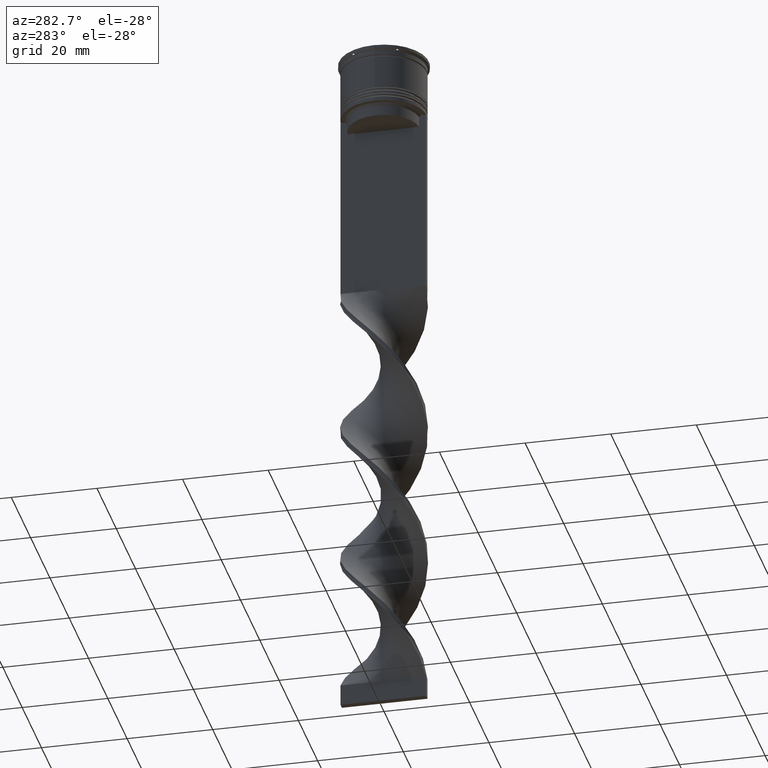
[diagram: clean part render]
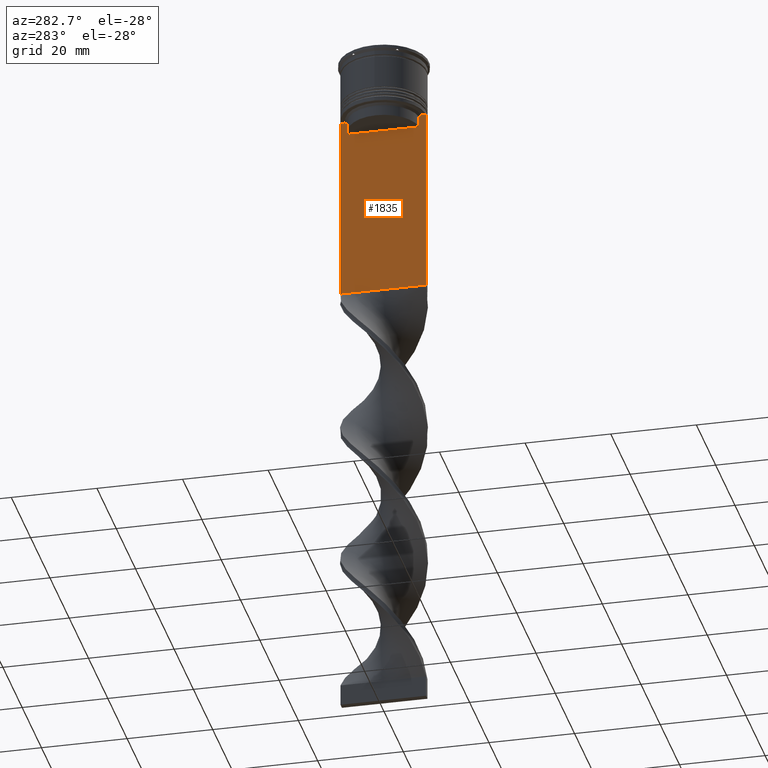
[diagram: same view with one face highlighted and labeled with its STEP entity id]
A machine part, auxiliary view. The second image highlights one B-rep face of the part: STEP entity #1835.
In plain terms, the highlighted planar face has unit normal (-1, 0, 0).
Its self-contained STEP definition (entity closure, byte-faithful):
#48 = VECTOR ( 'NONE', #1166, 1000.000000000000000 ) ;
#164 = VERTEX_POINT ( 'NONE', #1849 ) ;
#174 = VECTOR ( 'NONE', #1557, 1000.000000000000000 ) ;
#218 = CARTESIAN_POINT ( 'NONE',  ( -0.7499999999999997780, 9.999999999999998224, -14.00000000000000178 ) ) ;
#337 = DIRECTION ( 'NONE',  ( -1.000000000000000000, 0.000000000000000000, 0.000000000000000000 ) ) ;
#352 = B_SPLINE_CURVE_WITH_KNOTS ( 'NONE', 3,
 ( #2142, #1228, #3072, #3032 ),
 .UNSPECIFIED., .F., .F.,
 ( 4, 4 ),
 ( 0.01512225952876174867, 0.01583070519299695222 ),
 .UNSPECIFIED. ) ;
#382 = VECTOR ( 'NONE', #1616, 1000.000000000000000 ) ;
#396 = LINE ( 'NONE', #1749, #3365 ) ;
#413 = VERTEX_POINT ( 'NONE', #218 ) ;
#414 = CARTESIAN_POINT ( 'NONE',  ( -0.7499999999999997780, 8.366450860430608927, -14.50000000000000000 ) ) ;
#415 = LINE ( 'NONE', #2655, #759 ) ;
#502 = CARTESIAN_POINT ( 'NONE',  ( -0.7499999999999997780, 8.868342573446296839, -14.00000000000000178 ) ) ;
#536 = EDGE_CURVE ( 'NONE', #2139, #1716, #3877, .T. ) ;
#542 = DIRECTION ( 'NONE',  ( 0.000000000000000000, 1.000000000000000000, 0.000000000000000000 ) ) ;
#566 = LINE ( 'NONE', #819, #2342 ) ;
#611 = LINE ( 'NONE', #1262, #3353 ) ;
#683 = CARTESIAN_POINT ( 'NONE',  ( -0.7499999999999997780, -8.533766903463440912, -14.33335220807192201 ) ) ;
#759 = VECTOR ( 'NONE', #3122, 1000.000000000000000 ) ;
#786 = CARTESIAN_POINT ( 'NONE',  ( -0.7499999999999997780, -8.868342573446296839, -14.00000000000000178 ) ) ;
#815 = CARTESIAN_POINT ( 'NONE',  ( -0.7499999999999997780, -8.366450860430608927, -17.00000000000000000 ) ) ;
#819 = CARTESIAN_POINT ( 'NONE',  ( -0.7499999999999997780, -10.00000000000000533, -58.00000000000000000 ) ) ;
#831 = LINE ( 'NONE', #3139, #382 ) ;
#841 = CARTESIAN_POINT ( 'NONE',  ( -0.7499999999999997780, 8.400000000000003908, -17.00000000000000000 ) ) ;
#870 = CARTESIAN_POINT ( 'NONE',  ( -0.7499999999999997780, -10.00000000000000533, 6.056171120131581098 ) ) ;
#882 = LINE ( 'NONE', #3914, #174 ) ;
#906 = VERTEX_POINT ( 'NONE', #2338 ) ;
#934 = ORIENTED_EDGE ( 'NONE', *, *, #1369, .F. ) ;
#985 = CARTESIAN_POINT ( 'NONE',  ( -0.7499999999999997780, -8.366450860430608927, -14.50000000000000000 ) ) ;
#1065 = VECTOR ( 'NONE', #1460, 1000.000000000000000 ) ;
#1070 = EDGE_CURVE ( 'NONE', #2064, #1961, #3288, .T. ) ;
#1159 = DIRECTION ( 'NONE',  ( 0.000000000000000000, -1.000000000000000000, 0.000000000000000000 ) ) ;
#1166 = DIRECTION ( 'NONE',  ( 0.000000000000000000, 0.000000000000000000, -1.000000000000000000 ) ) ;
#1228 = CARTESIAN_POINT ( 'NONE',  ( -0.7499999999999997780, 8.701063075415252257, -14.16668448247791723 ) ) ;
#1236 = CARTESIAN_POINT ( 'NONE',  ( -0.7499999999999997780, -10.00000000000000533, 6.056171120131581098 ) ) ;
#1257 = EDGE_CURVE ( 'NONE', #2934, #906, #611, .T. ) ;
#1262 = CARTESIAN_POINT ( 'NONE',  ( -0.7499999999999997780, -10.00000000000000533, -14.00000000000000178 ) ) ;
#1270 = EDGE_CURVE ( 'NONE', #3822, #2537, #352, .T. ) ;
#1305 = VERTEX_POINT ( 'NONE', #3344 ) ;
#1369 = EDGE_CURVE ( 'NONE', #164, #2934, #1392, .T. ) ;
#1371 = CARTESIAN_POINT ( 'NONE',  ( -0.7499999999999997780, 8.366450860430608927, -17.00000000000000000 ) ) ;
#1392 = B_SPLINE_CURVE_WITH_KNOTS ( 'NONE', 3,
 ( #985, #683, #1871, #1507 ),
 .UNSPECIFIED., .F., .F.,
 ( 4, 4 ),
 ( 0.03866293624047253963, 0.03937282246709321309 ),
 .UNSPECIFIED. ) ;
#1460 = DIRECTION ( 'NONE',  ( -0.000000000000000000, -0.000000000000000000, 1.000000000000000000 ) ) ;
#1507 = CARTESIAN_POINT ( 'NONE',  ( -0.7499999999999997780, -8.868342573446296839, -14.00000000000000178 ) ) ;
#1557 = DIRECTION ( 'NONE',  ( 0.000000000000000000, -1.000000000000000000, 0.000000000000000000 ) ) ;
#1611 = EDGE_CURVE ( 'NONE', #1716, #164, #2076, .T. ) ;
#1615 = EDGE_CURVE ( 'NONE', #1961, #3928, #566, .T. ) ;
#1616 = DIRECTION ( 'NONE',  ( 0.000000000000000000, -1.000000000000000000, 0.000000000000000000 ) ) ;
#1637 = ORIENTED_EDGE ( 'NONE', *, *, #3598, .F. ) ;
#1716 = VERTEX_POINT ( 'NONE', #815 ) ;
#1749 = CARTESIAN_POINT ( 'NONE',  ( -0.7499999999999997780, 8.366450860430608927, 0.000000000000000000 ) ) ;
#1835 = ADVANCED_FACE ( 'NONE', ( #1863 ), #2171, .T. ) ;
#1849 = CARTESIAN_POINT ( 'NONE',  ( -0.7499999999999997780, -8.366450860430608927, -14.50000000000000000 ) ) ;
#1863 = FACE_OUTER_BOUND ( 'NONE', #2595, .T. ) ;
#1871 = CARTESIAN_POINT ( 'NONE',  ( -0.7499999999999997780, -8.701063080777123204, -14.16668447713511547 ) ) ;
#1878 = ORIENTED_EDGE ( 'NONE', *, *, #1257, .F. ) ;
#1902 = EDGE_CURVE ( 'NONE', #1305, #3822, #882, .T. ) ;
#1916 = CARTESIAN_POINT ( 'NONE',  ( -0.7499999999999997780, -10.00000000000000533, -14.00000000000000178 ) ) ;
#1961 = VERTEX_POINT ( 'NONE', #3378 ) ;
#2064 = VERTEX_POINT ( 'NONE', #1916 ) ;
#2076 = LINE ( 'NONE', #2350, #1065 ) ;
#2139 = VERTEX_POINT ( 'NONE', #1371 ) ;
#2142 = CARTESIAN_POINT ( 'NONE',  ( -0.7499999999999997780, 8.868342573446296839, -14.00000000000000178 ) ) ;
#2171 = PLANE ( 'NONE',  #3609 ) ;
#2314 = DIRECTION ( 'NONE',  ( 0.000000000000000000, 0.000000000000000000, -1.000000000000000000 ) ) ;
#2338 = CARTESIAN_POINT ( 'NONE',  ( -0.7499999999999997780, -9.871550030263740894, -14.00000000000000178 ) ) ;
#2342 = VECTOR ( 'NONE', #542, 1000.000000000000000 ) ;
#2350 = CARTESIAN_POINT ( 'NONE',  ( -0.7499999999999997780, -8.366450860430608927, 0.000000000000000000 ) ) ;
#2400 = ORIENTED_EDGE ( 'NONE', *, *, #3538, .F. ) ;
#2455 = ORIENTED_EDGE ( 'NONE', *, *, #1270, .F. ) ;
#2537 = VERTEX_POINT ( 'NONE', #414 ) ;
#2595 = EDGE_LOOP ( 'NONE', ( #2455, #3590, #2400, #2834, #3895, #3817, #1637, #1878, #934, #2614, #2688, #3725 ) ) ;
#2614 = ORIENTED_EDGE ( 'NONE', *, *, #1611, .F. ) ;
#2655 = CARTESIAN_POINT ( 'NONE',  ( -0.7499999999999997780, -10.00000000000000533, -14.00000000000000178 ) ) ;
#2688 = ORIENTED_EDGE ( 'NONE', *, *, #536, .F. ) ;
#2834 = ORIENTED_EDGE ( 'NONE', *, *, #3513, .T. ) ;
#2934 = VERTEX_POINT ( 'NONE', #786 ) ;
#2955 = DIRECTION ( 'NONE',  ( 0.000000000000000000, 0.000000000000000000, -1.000000000000000000 ) ) ;
#3032 = CARTESIAN_POINT ( 'NONE',  ( -0.7499999999999997780, 8.366450860430608927, -14.50000000000000000 ) ) ;
#3053 = VECTOR ( 'NONE', #2314, 1000.000000000000000 ) ;
#3072 = CARTESIAN_POINT ( 'NONE',  ( -0.7499999999999997780, 8.533766897779926808, -14.33335221373273782 ) ) ;
#3122 = DIRECTION ( 'NONE',  ( 0.000000000000000000, -1.000000000000000000, 0.000000000000000000 ) ) ;
#3139 = CARTESIAN_POINT ( 'NONE',  ( -0.7499999999999997780, -10.00000000000000533, -14.00000000000000178 ) ) ;
#3288 = LINE ( 'NONE', #870, #48 ) ;
#3344 = CARTESIAN_POINT ( 'NONE',  ( -0.7499999999999997780, 9.871550030263740894, -14.00000000000000178 ) ) ;
#3353 = VECTOR ( 'NONE', #3685, 1000.000000000000000 ) ;
#3365 = VECTOR ( 'NONE', #2955, 1000.000000000000000 ) ;
#3378 = CARTESIAN_POINT ( 'NONE',  ( -0.7499999999999998890, -10.00000000000000533, -58.00000000000000000 ) ) ;
#3513 = EDGE_CURVE ( 'NONE', #413, #3928, #3730, .T. ) ;
#3538 = EDGE_CURVE ( 'NONE', #413, #1305, #415, .T. ) ;
#3590 = ORIENTED_EDGE ( 'NONE', *, *, #1902, .F. ) ;
#3598 = EDGE_CURVE ( 'NONE', #906, #2064, #831, .T. ) ;
#3603 = CARTESIAN_POINT ( 'NONE',  ( -0.7499999999999997780, 9.999999999999998224, -58.00000000000000000 ) ) ;
#3609 = AXIS2_PLACEMENT_3D ( 'NONE', #1236, #337, #3654 ) ;
#3654 = DIRECTION ( 'NONE',  ( 0.000000000000000000, 0.000000000000000000, 1.000000000000000000 ) ) ;
#3664 = VECTOR ( 'NONE', #1159, 1000.000000000000000 ) ;
#3685 = DIRECTION ( 'NONE',  ( 0.000000000000000000, -1.000000000000000000, 0.000000000000000000 ) ) ;
#3693 = EDGE_CURVE ( 'NONE', #2537, #2139, #396, .T. ) ;
#3725 = ORIENTED_EDGE ( 'NONE', *, *, #3693, .F. ) ;
#3730 = LINE ( 'NONE', #3803, #3053 ) ;
#3803 = CARTESIAN_POINT ( 'NONE',  ( -0.7499999999999997780, 9.999999999999998224, 6.056171120131581098 ) ) ;
#3817 = ORIENTED_EDGE ( 'NONE', *, *, #1070, .F. ) ;
#3822 = VERTEX_POINT ( 'NONE', #502 ) ;
#3877 = LINE ( 'NONE', #841, #3664 ) ;
#3895 = ORIENTED_EDGE ( 'NONE', *, *, #1615, .F. ) ;
#3914 = CARTESIAN_POINT ( 'NONE',  ( -0.7499999999999997780, -10.00000000000000533, -14.00000000000000178 ) ) ;
#3928 = VERTEX_POINT ( 'NONE', #3603 ) ;